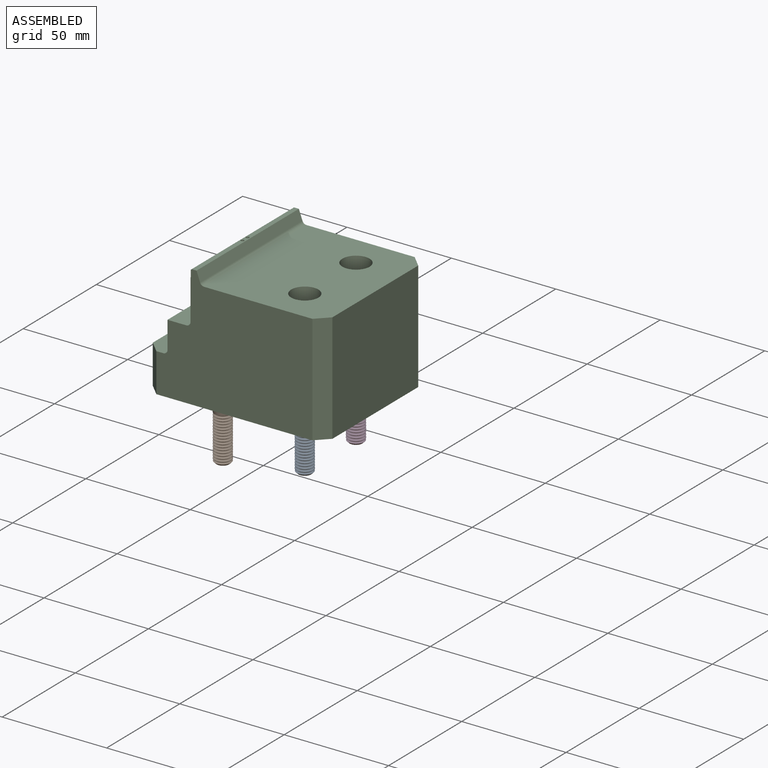
[diagram: assembled view]
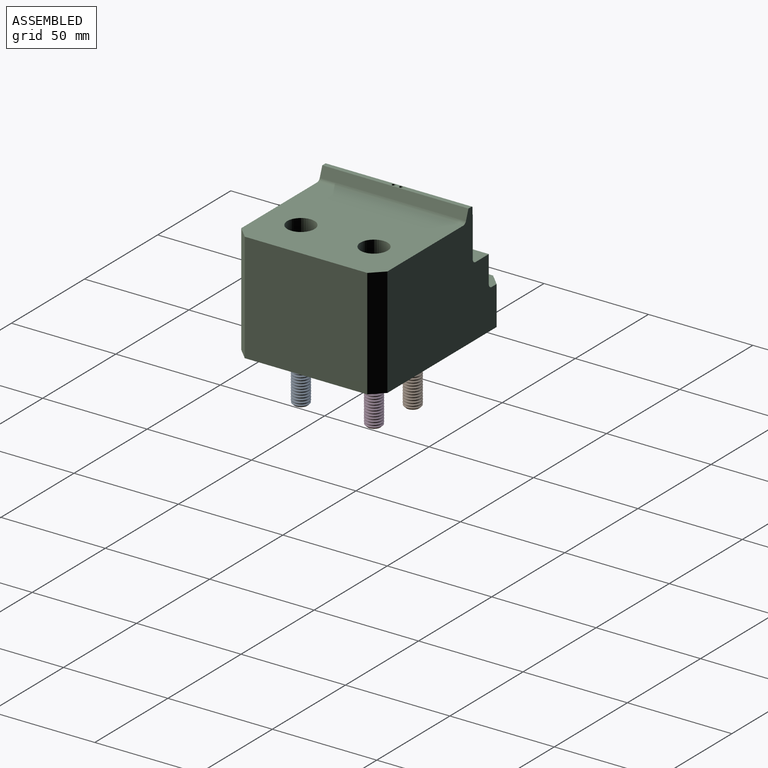
[diagram: assembled view, second angle]
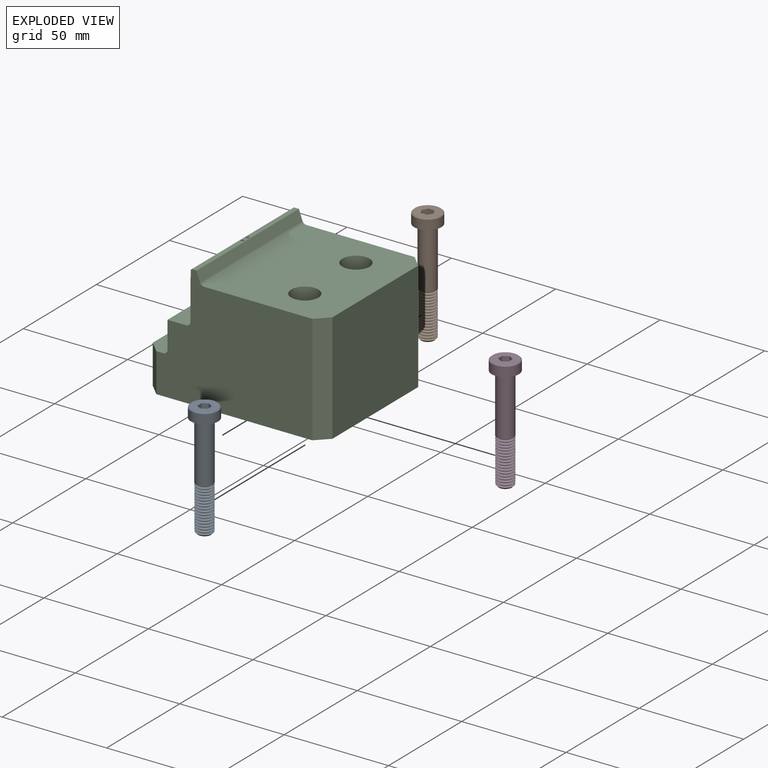
[diagram: exploded view]
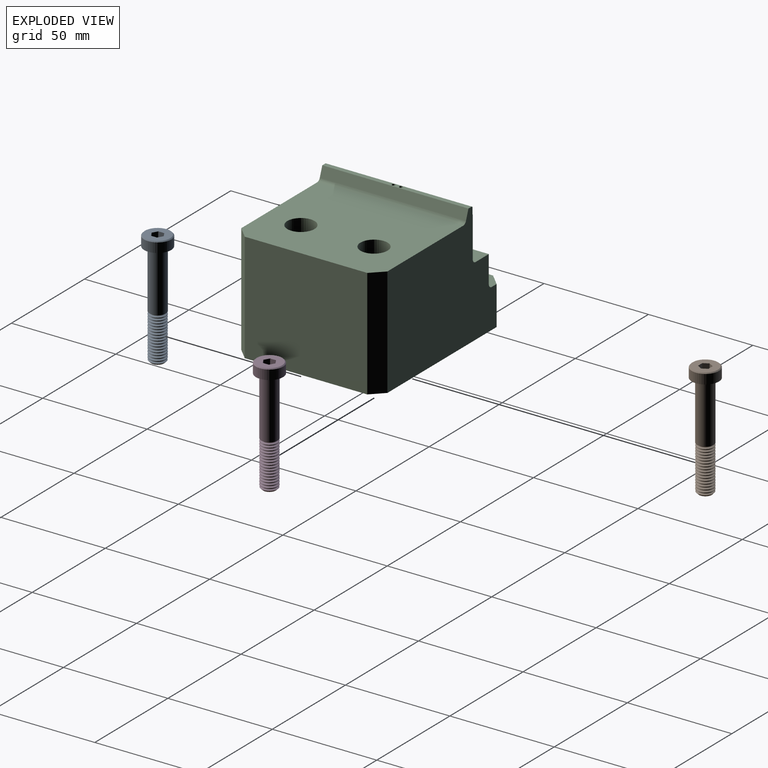
[diagram: exploded view, second angle]
ASSEMBLY  parts=4 mates=9
PART A: 84 faces, bbox 13x13x55 mm
  f0: cone r=3.05mm half-angle=45deg, axis (0,0,1), area 18.6mm2, adj f79,f80
  f1: cylinder r=4mm len=8mm, axis (0,0,-1), area 3.9mm2, adj f72,f73
  f2: cylinder r=4mm len=8mm, axis (0,0,-1), area 3.9mm2, adj f69,f70
  f3: cylinder r=4mm len=8mm, axis (0,0,-1), area 3.9mm2, adj f66,f67
  f4: cylinder r=4mm len=8mm, axis (0,0,-1), area 3.9mm2, adj f63,f64
  f5: cylinder r=4mm len=8mm, axis (0,0,-1), area 3.9mm2, adj f60,f61
  f6: cylinder r=4mm len=8mm, axis (0,0,-1), area 3.9mm2, adj f57,f58
  f7: cylinder r=4mm len=8mm, axis (0,0,-1), area 3.9mm2, adj f54,f55
  f8: cylinder r=4mm len=8mm, axis (0,0,-1), area 3.9mm2, adj f51,f52
  f9: cylinder r=4mm len=8mm, axis (0,0,-1), area 3.9mm2, adj f48,f49
  f10: cylinder r=4mm len=8mm, axis (0,0,-1), area 3.9mm2, adj f45,f46
  f11: cylinder r=4mm len=8mm, axis (0,0,-1), area 3.9mm2, adj f42,f43
  f12: cylinder r=4mm len=8mm, axis (0,0,-1), area 3.9mm2, adj f39,f40
  f13: cylinder r=4mm len=8mm, axis (0,0,-1), area 3.9mm2, adj f36,f37
  f14: cylinder r=4mm len=8mm, axis (0,0,-1), area 3.9mm2, adj f33,f34
  f15: cylinder r=4mm len=8mm, axis (0,0,-1), area 3.9mm2, adj f30,f31
  f16: cylinder r=4mm len=28.08mm, axis (0,0,-1), area 705.7mm2, adj f19,f28
  f17: cone r=6.5mm half-angle=45deg, axis (0,0,-1), area 24.4mm2, adj f18,f20
  f18: plane 12.13x12.13mm, normal (0,0,1), area 93.8mm2, adj f17,f21,f22,f23,f24,f25,f26
  f19: plane 13x13mm, normal (0,0,-1), area 82.5mm2, adj f16,f20
  f20: cylinder r=6.5mm len=13mm, axis (0,0,1), area 186.3mm2, adj f17,f19
  f21: plane 4.2x2.5mm, normal (-0.5,0.87,0), area 12.1mm2, adj f18,f22,f26,f27
  f22: plane 4.2x2.5mm, normal (0.5,0.87,0), area 12.1mm2, adj f18,f21,f23,f27
  f23: plane 4.2x2.89mm, normal (1,0,0), area 12.1mm2, adj f18,f22,f24,f27
  f24: plane 4.2x2.5mm, normal (0.5,-0.87,0), area 12.1mm2, adj f18,f23,f25,f27
  f25: plane 4.2x2.5mm, normal (-0.5,-0.87,0), area 12.1mm2, adj f18,f24,f26,f27
  f26: plane 4.2x2.89mm, normal (-1,0,0), area 12.1mm2, adj f18,f21,f25,f27
  f27: plane 5.77x5mm, normal (0,0,1), area 21.7mm2, adj f21,f22,f23,f24,f25,f26
  f28: cone r=4.14mm half-angle=60deg, axis (0,0,1), area 19.6mm2, adj f16,f29
  f29: torus R=3.32mm, axis (0,0,-1), area 5.7mm2, adj f28,f30
  f30: cone r=3.26mm half-angle=60deg, axis (0,0,-1), area 19.6mm2, adj f15,f29
  f31: cone r=4.14mm half-angle=60deg, axis (0,0,1), area 19.6mm2, adj f15,f32
  f32: torus R=3.32mm, axis (0,0,-1), area 5.7mm2, adj f31,f33
  f33: cone r=3.26mm half-angle=60deg, axis (0,0,-1), area 19.6mm2, adj f14,f32
  f34: cone r=4.14mm half-angle=60deg, axis (0,0,1), area 19.6mm2, adj f14,f35
  f35: torus R=3.32mm, axis (0,0,-1), area 5.7mm2, adj f34,f36
  f36: cone r=3.26mm half-angle=60deg, axis (0,0,-1), area 19.6mm2, adj f13,f35
  f37: cone r=4.14mm half-angle=60deg, axis (0,0,1), area 19.6mm2, adj f13,f38
  f38: torus R=3.32mm, axis (0,0,-1), area 5.7mm2, adj f37,f39
  f39: cone r=3.26mm half-angle=60deg, axis (0,0,-1), area 19.6mm2, adj f12,f38
  f40: cone r=4.14mm half-angle=60deg, axis (0,0,1), area 19.6mm2, adj f12,f41
  f41: torus R=3.32mm, axis (0,0,-1), area 5.7mm2, adj f40,f42
  f42: cone r=3.26mm half-angle=60deg, axis (0,0,-1), area 19.6mm2, adj f11,f41
  f43: cone r=4.14mm half-angle=60deg, axis (0,0,1), area 19.6mm2, adj f11,f44
  f44: torus R=3.32mm, axis (0,0,-1), area 5.7mm2, adj f43,f45
  f45: cone r=3.26mm half-angle=60deg, axis (0,0,-1), area 19.6mm2, adj f10,f44
  f46: cone r=4.14mm half-angle=60deg, axis (0,0,1), area 19.6mm2, adj f10,f47
  f47: torus R=3.32mm, axis (0,0,-1), area 5.7mm2, adj f46,f48
  f48: cone r=3.26mm half-angle=60deg, axis (0,0,-1), area 19.6mm2, adj f9,f47
  f49: cone r=4.14mm half-angle=60deg, axis (0,0,1), area 19.6mm2, adj f9,f50
  f50: torus R=3.32mm, axis (0,0,-1), area 5.7mm2, adj f49,f51
  f51: cone r=3.26mm half-angle=60deg, axis (0,0,-1), area 19.6mm2, adj f8,f50
  f52: cone r=4.14mm half-angle=60deg, axis (0,0,1), area 19.6mm2, adj f8,f53
  f53: torus R=3.32mm, axis (0,0,-1), area 5.7mm2, adj f52,f54
  f54: cone r=3.26mm half-angle=60deg, axis (0,0,-1), area 19.6mm2, adj f7,f53
  f55: cone r=4.14mm half-angle=60deg, axis (0,0,1), area 19.6mm2, adj f7,f56
  f56: torus R=3.32mm, axis (0,0,-1), area 5.7mm2, adj f55,f57
  f57: cone r=3.26mm half-angle=60deg, axis (0,0,-1), area 19.6mm2, adj f6,f56
  f58: cone r=4.14mm half-angle=60deg, axis (0,0,1), area 19.6mm2, adj f6,f59
  f59: torus R=3.32mm, axis (0,0,-1), area 5.7mm2, adj f58,f60
  f60: cone r=3.26mm half-angle=60deg, axis (0,0,-1), area 19.6mm2, adj f5,f59
  f61: cone r=4.14mm half-angle=60deg, axis (0,0,1), area 19.6mm2, adj f5,f62
  f62: torus R=3.32mm, axis (0,0,-1), area 5.7mm2, adj f61,f63
  f63: cone r=3.26mm half-angle=60deg, axis (0,0,-1), area 19.6mm2, adj f4,f62
  f64: cone r=4.14mm half-angle=60deg, axis (0,0,1), area 19.6mm2, adj f4,f65
  f65: torus R=3.32mm, axis (0,0,-1), area 5.7mm2, adj f64,f66
  f66: cone r=3.26mm half-angle=60deg, axis (0,0,-1), area 19.6mm2, adj f3,f65
  f67: cone r=4.14mm half-angle=60deg, axis (0,0,1), area 19.6mm2, adj f3,f68
  f68: torus R=3.32mm, axis (0,0,-1), area 5.7mm2, adj f67,f69
  f69: cone r=3.26mm half-angle=60deg, axis (0,0,-1), area 19.6mm2, adj f2,f68
  f70: cone r=4.14mm half-angle=60deg, axis (0,0,1), area 19.6mm2, adj f2,f71
  f71: torus R=3.32mm, axis (0,0,-1), area 5.7mm2, adj f70,f72
  f72: cone r=3.26mm half-angle=60deg, axis (0,0,-1), area 19.6mm2, adj f1,f71
  f73: cone r=4.14mm half-angle=60deg, axis (0,0,1), area 19.6mm2, adj f1,f74
  f74: torus R=3.32mm, axis (0,0,-1), area 5.7mm2, adj f73,f75
  f75: cone r=3.26mm half-angle=60deg, axis (0,0,-1), area 19.6mm2, adj f74,f76
  f76: cylinder r=4mm len=8mm, axis (0,0,-1), area 3.9mm2, adj f75,f77
  f77: cone r=4.14mm half-angle=60deg, axis (0,0,1), area 19.6mm2, adj f76,f78
  f78: torus R=3.32mm, axis (0,0,-1), area 5.7mm2, adj f77,f79
  f79: cone r=3.26mm half-angle=60deg, axis (0,0,-1), area 17.4mm2, adj f0,f78
  f80: cone r=4.14mm half-angle=60deg, axis (0,0,1), area 2.2mm2, adj f0,f81
  f81: torus R=3.32mm, axis (0,0,-1), area 2.6mm2, adj f80,f83
  f82: plane 6.11x6.11mm, normal (0,0,-1), area 29.3mm2, adj f83
  f83: cone r=3.05mm half-angle=45deg, axis (0,0,1), area 3.8mm2, adj f81,f82
PART B: same geometry as A
PART C: 43 faces, bbox 86x70x58.6 mm
  f0: cylinder r=4mm len=9mm, axis (0,0,1), area 226.2mm2, adj f4,f41
  f1: plane 70x57.5mm, normal (0,0,1), area 3725.6mm2, adj f10,f11,f12,f13,f14,f25,f38,f39
  f2: cylinder r=4mm len=25mm, axis (0,0,-1), area 628.3mm2, adj f4,f40
  f3: cylinder r=4mm len=25mm, axis (0,0,-1), area 628.3mm2, adj f4,f37
  f4: plane 86x70mm, normal (0,0,-1), area 5805.2mm2, adj f0,f2,f3,f10,f11,f12,f13,f14
  f5: plane 26.17x9mm, normal (0,0,1), area 234.1mm2, adj f7,f10,f20,f35,f36
  f6: cylinder r=2mm len=29mm, axis (0,1,0), area 85.9mm2, adj f12,f16,f19,f33
  f7: plane 26x13mm, normal (-1,0,0), area 338mm2, adj f5,f8,f10,f35
  f8: cylinder r=2mm len=26mm, axis (0,1,0), area 81.7mm2, adj f7,f10,f22,f35
  f9: plane 70x2.08mm, normal (0,0,1), area 142.1mm2, adj f10,f12,f24,f26,f28,f32
  f10: plane 74.69x58.62mm, normal (0,-1,0), area 3562.5mm2, adj f1,f4,f5,f7,f8,f9,f13,f18
  f11: plane 52.58x5.66mm, normal (0.71,0.71,0), area 420.6mm2, adj f1,f4,f12,f14
  f12: plane 74.69x58.62mm, normal (0,1,0), area 3562.5mm2, adj f1,f4,f6,f9,f11,f15,f16,f19
  f13: plane 52.58x5.66mm, normal (0.71,-0.71,0), area 420.6mm2, adj f1,f4,f10,f14
  f14: plane 58.69x52.58mm, normal (1,0,0), area 3085.6mm2, adj f1,f4,f11,f13
  f15: plane 18.62x5.66mm, normal (-0.71,0.71,0), area 148.9mm2, adj f4,f12,f17,f22
  f16: plane 26.17x9mm, normal (0,0,1), area 234.1mm2, adj f6,f12,f21,f33,f34
  f17: plane 58.69x18.62mm, normal (-1,0,0), area 1092.6mm2, adj f4,f15,f18,f22
  f18: plane 18.62x5.66mm, normal (-0.71,-0.71,0), area 148.9mm2, adj f4,f10,f17,f22
  f19: plane 70x36.32mm, normal (-1,0,0), area 1556.4mm2, adj f6,f10,f12,f20,f22,f30,f33,f36
  f20: cylinder r=2mm len=29mm, axis (0,1,0), area 85.9mm2, adj f5,f10,f19,f36
  f21: plane 26x13mm, normal (-1,0,0), area 338mm2, adj f12,f16,f23,f34
  f22: plane 70x22mm, normal (0,0,1), area 694.4mm2, adj f8,f10,f12,f15,f17,f18,f19,f23
  f23: cylinder r=2mm len=26mm, axis (0,1,0), area 81.7mm2, adj f12,f21,f22,f34
  f24: plane 70x4.72mm, normal (0.94,0,0.34), area 351.9mm2, adj f9,f10,f12,f25
  f25: cylinder r=2mm len=70mm, axis (0,1,0), area 171mm2, adj f1,f10,f12,f24
  f26: cylinder r=0.75mm len=3mm, axis (0,0,1), area 14.1mm2, adj f9,f27
  f27: plane 1.5x1.5mm, normal (0,0,1), area 1.8mm2, adj f26
  f28: cylinder r=0.75mm len=3mm, axis (0,0,1), area 14.1mm2, adj f9,f29
  f29: plane 1.5x1.5mm, normal (0,0,1), area 1.8mm2, adj f28
  f30: plane 70x0.12mm, normal (-0.71,0,0.71), area 11.9mm2, adj f10,f12,f19,f31
  f31: plane 70x2.86mm, normal (-1,0,0), area 200.2mm2, adj f10,f12,f30,f32
  f32: cylinder r=0.7mm len=70mm, axis (0,-1,0), area 77mm2, adj f9,f10,f12,f31
  f33: cylinder r=3mm len=17mm, axis (0,0,1), area 73.4mm2, adj f6,f16,f19,f22,f34
  f34: plane 15x10mm, normal (0,-1,0), area 120.9mm2, adj f16,f21,f22,f23,f33
  f35: plane 15x10mm, normal (0,1,0), area 120.9mm2, adj f5,f7,f8,f22,f36
  f36: cylinder r=3mm len=17mm, axis (0,0,1), area 73.4mm2, adj f5,f19,f20,f22,f35
  f37: plane 13.05x13.05mm, normal (0,0,1), area 83.5mm2, adj f3,f38
  f38: cylinder r=6.53mm len=27.58mm, axis (0,0,1), area 1130.6mm2, adj f1,f37
  f39: cylinder r=6.53mm len=27.58mm, axis (0,0,1), area 1130.6mm2, adj f1,f40
  f40: plane 13.05x13.05mm, normal (0,0,1), area 83.5mm2, adj f2,f39
  f41: plane 13.05x13.05mm, normal (0,0,1), area 83.5mm2, adj f0,f42
  f42: cylinder r=6.53mm len=13.05mm, axis (0,0,1), area 394.3mm2, adj f22,f41
PART D: same geometry as A
PLACE A t=(115.65,-115.38,163.47)mm
PLACE B rot(axis=(0,0,-1),90deg) t=(64.15,-97.88,147.38)mm
PLACE C t=(94.15,-97.88,43.94)mm
PLACE D t=(115.65,-80.38,163.47)mm
MATE parallel B.f32 <-> C.f22  axis (0,0,1) through (64.15,-97.88,152.38)mm
MATE cylindrical B.f0 <-> C.f0  axis (0,0,-1) through (64.15,-97.88,119.3)mm
MATE parallel B.f20 <-> C.f0  axis (0,0,1) through (64.15,-97.88,149.66)mm
MATE cylindrical A.f0 <-> C.f3  axis (0,0,-1) through (115.65,-115.38,149.43)mm
MATE parallel B.f20 <-> C.f0  axis (0,0,1) through (64.15,-97.88,149.66)mm
MATE parallel B.f0 <-> C.f0  axis (0,0,-1) through (64.15,-97.88,133.34)mm
MATE parallel B.f32 <-> C.f22  axis (0,0,1) through (64.15,-97.88,152.38)mm
MATE cylindrical D.f0 <-> C.f2  axis (0,0,-1) through (115.65,-80.38,149.43)mm
MATE parallel B.f0 <-> C.f0  axis (0,0,-1) through (64.15,-97.88,147.38)mm
